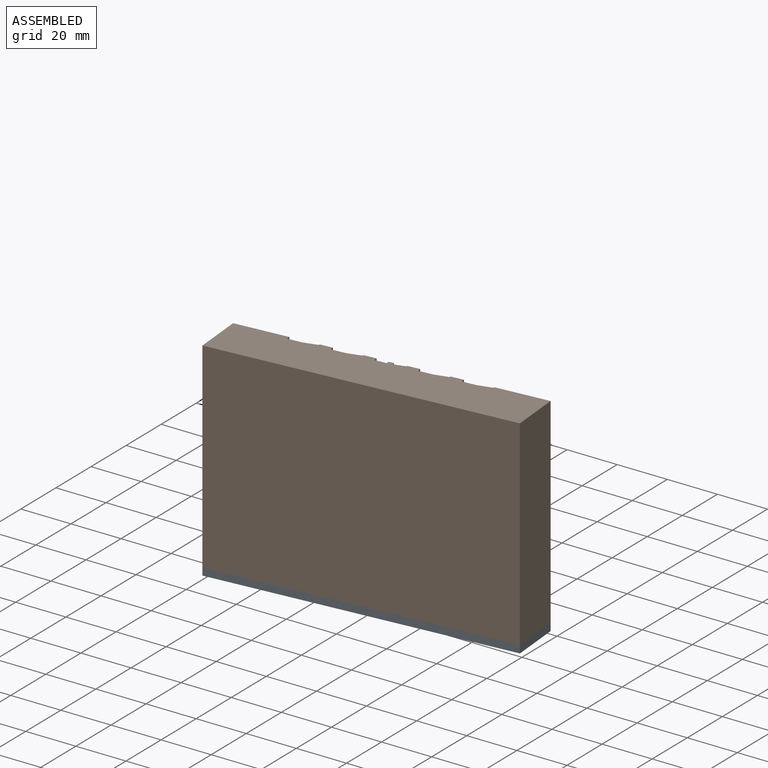
[diagram: assembled view]
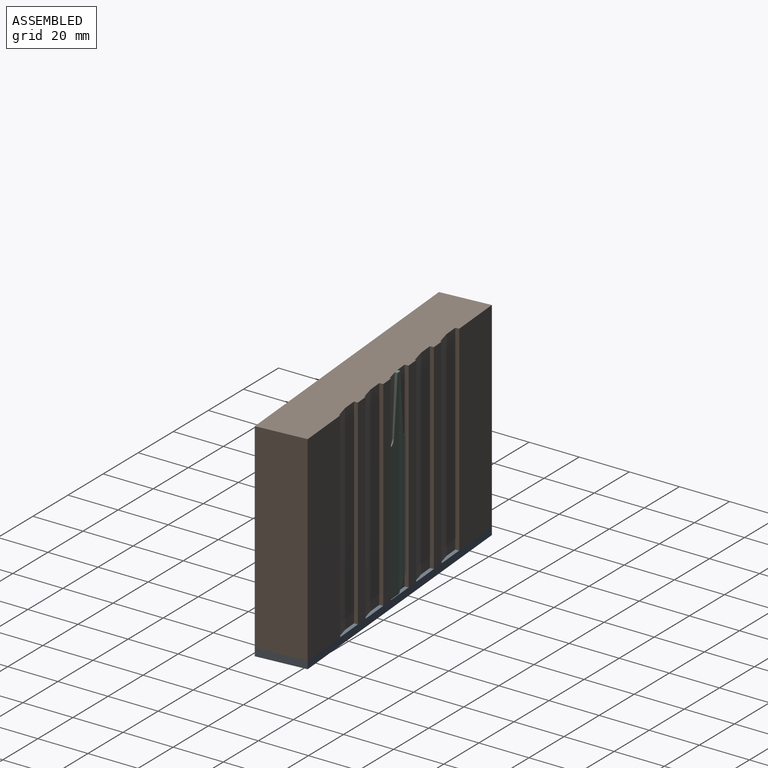
[diagram: assembled view, second angle]
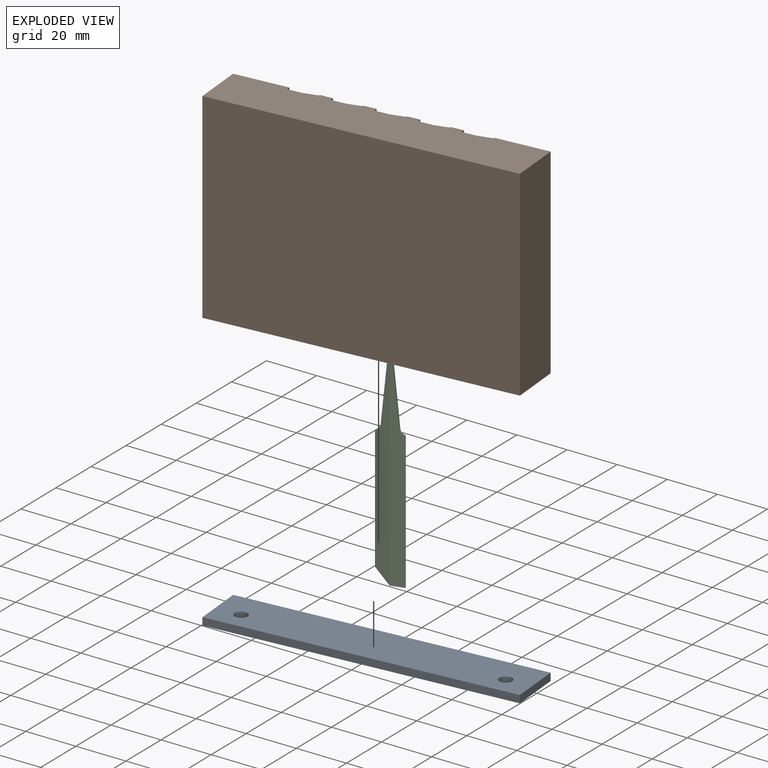
[diagram: exploded view]
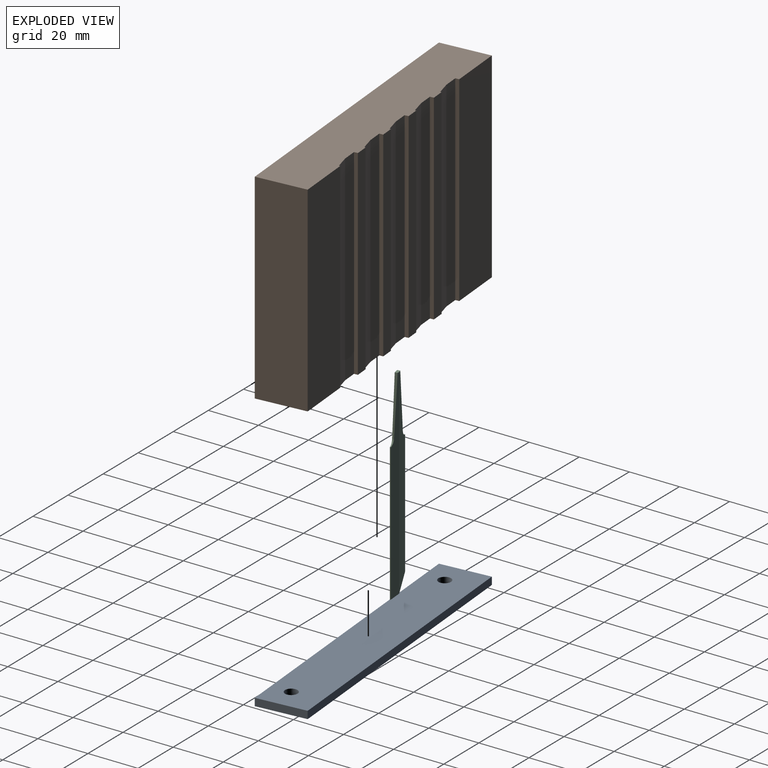
[diagram: exploded view, second angle]
ASSEMBLY  parts=3 mates=2
PART A: 8 faces, bbox 120x20x3 mm
  f0: plane 20x3mm, normal (1,0,0), area 60mm2, adj f1,f4,f6,f7
  f1: plane 120x3mm, normal (0,1,0), area 360mm2, adj f0,f2,f6,f7
  f2: plane 20x3mm, normal (-1,0,0), area 60mm2, adj f1,f4,f6,f7
  f3: cylinder r=2.5mm len=5mm, axis (0,0,-1), area 47.1mm2, adj f6,f7
  f4: plane 120x3mm, normal (0,-1,0), area 360mm2, adj f0,f2,f6,f7
  f5: cylinder r=2.5mm len=5mm, axis (0,0,-1), area 47.1mm2, adj f6,f7
  f6: plane 120x20mm, normal (0,0,1), area 2360.7mm2, adj f0,f1,f2,f3,f4,f5
  f7: plane 120x20mm, normal (0,0,-1), area 2360.7mm2, adj f0,f1,f2,f3,f4,f5
PART B: 35 faces, bbox 120x20x80 mm
  f0: plane 120x20mm, normal (0,0,-1), area 2289.1mm2, adj f1,f2,f3,f4,f5,f7,f8,f9
  f1: plane 80x21.25mm, normal (0,1,0), area 1700mm2, adj f0,f6,f9,f29
  f2: plane 80x5mm, normal (0,1,0), area 400mm2, adj f0,f6,f25,f28
  f3: plane 80x5mm, normal (0,1,0), area 400mm2, adj f0,f6,f21,f24
  f4: plane 80x5mm, normal (0,1,0), area 400mm2, adj f0,f6,f15,f20
  f5: plane 80x5mm, normal (0,1,0), area 400mm2, adj f0,f6,f11,f18
  f6: plane 120x20mm, normal (0,0,1), area 2328.3mm2, adj f1,f2,f3,f4,f5,f7,f8,f9
  f7: plane 80x20mm, normal (1,0,0), area 1600mm2, adj f0,f6,f8,f10
  f8: plane 80x21.25mm, normal (0,1,0), area 1700mm2, adj f0,f6,f7,f14
  f9: plane 80x20mm, normal (-1,0,0), area 1600mm2, adj f0,f1,f6,f10
  f10: plane 120x80mm, normal (0,-1,0), area 9600mm2, adj f0,f6,f7,f9
  f11: plane 80x1.5mm, normal (1,0,0), area 120mm2, adj f0,f5,f6,f12
  f12: plane 80x5.75mm, normal (0,1,0), area 460mm2, adj f0,f6,f11,f13
  f13: plane 80x5.75mm, normal (-0.17,0.98,0), area 467.1mm2, adj f0,f6,f12,f14
  f14: plane 80x0.49mm, normal (-1,0,0), area 38.9mm2, adj f0,f6,f8,f13
  f15: plane 80x1.5mm, normal (1,0,0), area 120mm2, adj f0,f4,f6,f16
  f16: plane 80x5.75mm, normal (0,1,0), area 460mm2, adj f0,f6,f15,f17
  f17: plane 80x5.75mm, normal (-0.17,0.98,0), area 467.1mm2, adj f0,f6,f16,f18
  f18: plane 80x0.49mm, normal (-1,0,0), area 38.9mm2, adj f0,f5,f6,f17
  f19: plane 80x5.75mm, normal (-0.17,0.98,0), area 467.1mm2, adj f0,f6,f20,f22
  f20: plane 80x0.49mm, normal (-1,0,0), area 38.9mm2, adj f0,f4,f6,f19
  f21: plane 80x1.5mm, normal (1,0,0), area 120mm2, adj f0,f3,f6,f22
  f22: plane 80x5.75mm, normal (0,1,0), area 460mm2, adj f0,f6,f19,f21
  f23: plane 80x5.75mm, normal (-0.17,0.98,0), area 467.1mm2, adj f0,f6,f24,f26
  f24: plane 80x0.49mm, normal (-1,0,0), area 38.9mm2, adj f0,f3,f6,f23
  f25: plane 80x1.5mm, normal (1,0,0), area 120mm2, adj f0,f2,f6,f26
  f26: plane 80x5.75mm, normal (0,1,0), area 460mm2, adj f0,f6,f23,f25
  f27: plane 80x5.75mm, normal (-0.17,0.98,0), area 467.1mm2, adj f0,f6,f28,f30
  f28: plane 80x0.49mm, normal (-1,0,0), area 38.9mm2, adj f0,f2,f6,f27
  f29: plane 80x1.5mm, normal (1,0,0), area 120mm2, adj f0,f1,f6,f30
  f30: plane 80x5.75mm, normal (0,1,0), area 460mm2, adj f0,f6,f27,f29
  f31: cylinder r=2.5mm len=15mm, axis (0,0,-1), area 235.6mm2, adj f0,f32
  f32: plane 5x5mm, normal (0,0,-1), area 19.6mm2, adj f31
  f33: cylinder r=2.5mm len=15mm, axis (0,0,-1), area 235.6mm2, adj f0,f34
  f34: plane 5x5mm, normal (0,0,-1), area 19.6mm2, adj f33
PART C: 13 faces, bbox 11x80x1.2 mm
  f0: plane 49.5x0.3mm, normal (-1,0,0), area 14.8mm2, adj f1,f2,f6,f12
  f1: plane 80x5.5mm, normal (-0.09,0,-1), area 347.5mm2, adj f0,f3,f5,f6,f10,f12
  f2: plane 80x5.5mm, normal (-0.09,0,1), area 347.5mm2, adj f0,f3,f5,f6,f11,f12
  f3: plane 2x1.24mm, normal (0,-1,0), area 2.3mm2, adj f1,f2,f5,f8,f10,f11
  f4: plane 5.5x1.24mm, normal (0,1,0), area 4.2mm2, adj f7,f10,f11,f12
  f5: plane 22.79x2.4mm, normal (-0.99,-0.1,0), area 19.8mm2, adj f1,f2,f3,f6
  f6: cylinder r=2.5mm len=2.21mm, axis (0,0,-1), area 1.7mm2, adj f0,f1,f2,f5
  f7: plane 55x0.3mm, normal (1,0,0), area 16.5mm2, adj f4,f9,f10,f11
  f8: plane 22.79x2.4mm, normal (0.99,-0.1,0), area 19.8mm2, adj f3,f9,f10,f11
  f9: cylinder r=2.5mm len=2.21mm, axis (0,0,1), area 1.7mm2, adj f7,f8,f10,f11
  f10: plane 80x5.5mm, normal (0.09,0,-1), area 362.6mm2, adj f1,f3,f4,f7,f8,f9
  f11: plane 80x5.5mm, normal (0.09,0,1), area 362.6mm2, adj f2,f3,f4,f7,f8,f9
  f12: plane 5.5x5.5mm, normal (-0.71,0.71,0), area 6mm2, adj f0,f1,f2,f4
PLACE A rot(axis=(0,0,1),4.9deg) t=(-37.94,-88.68,-53.22)mm
PLACE B rot(axis=(0,0,1),4.9deg) t=(-37.94,-88.68,-50.22)mm
PLACE C rot(axis=(-0.99,-0.08,0.08),90.4deg) t=(-38.65,-80.21,-10.22)mm
MATE fastened B.f31 <-> A.f3  axis (0,0,-1) through (12.05,-86.41,-50.22)mm
MATE planar C.f1 <-> B.f22  axis (0.09,-1,0) through (-42.05,-80.5,6.99)mm
